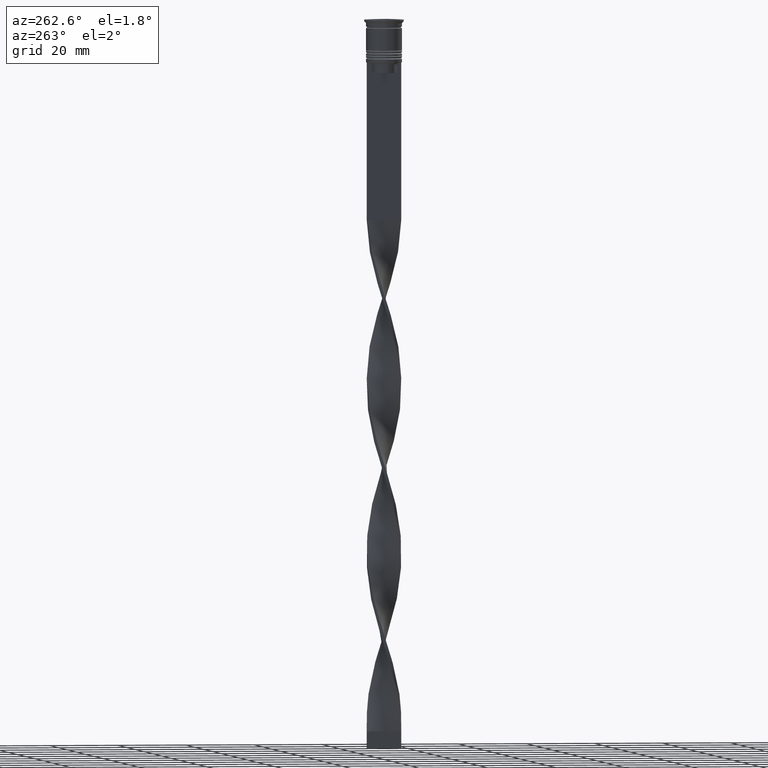
[diagram: clean part render]
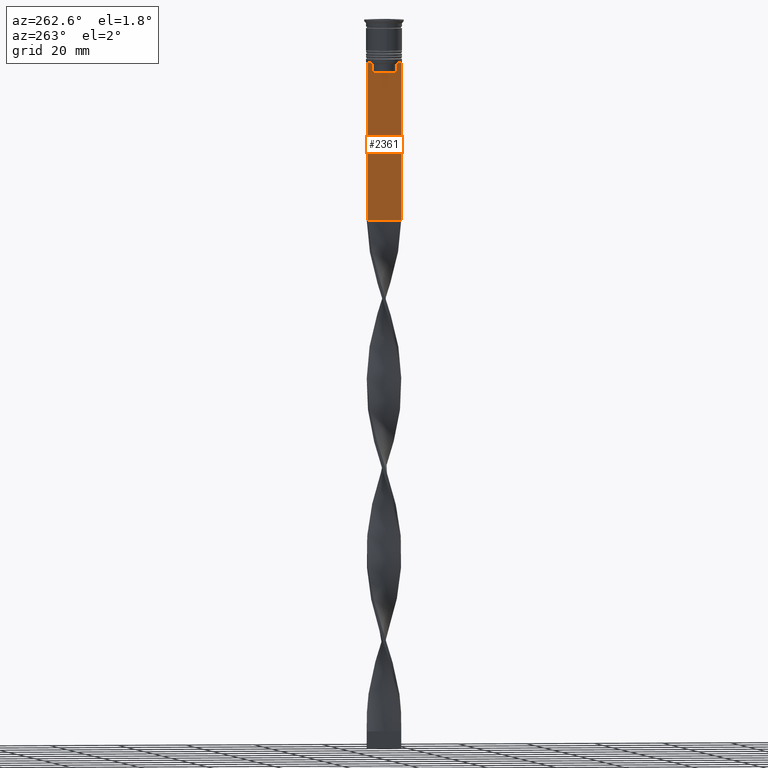
[diagram: same view with one face highlighted and labeled with its STEP entity id]
A machine part, auxiliary view. The second image highlights one B-rep face of the part: STEP entity #2361.
In plain terms, the highlighted planar face has unit normal (-1, 0, 0).
Its self-contained STEP definition (entity closure, byte-faithful):
#76 = CARTESIAN_POINT ( 'NONE',  ( -0.5000000000000000000, 3.615591237958188042, 0.000000000000000000 ) ) ;
#101 = EDGE_LOOP ( 'NONE', ( #2834, #3245, #3125, #246, #1710, #325, #3235, #759, #734, #2161 ) ) ;
#149 = VERTEX_POINT ( 'NONE', #1554 ) ;
#195 = DIRECTION ( 'NONE',  ( 0.000000000000000000, 0.000000000000000000, 1.000000000000000000 ) ) ;
#199 = VECTOR ( 'NONE', #519, 1000.000000000000000 ) ;
#201 = CARTESIAN_POINT ( 'NONE',  ( -0.5000000000000000000, -4.999999999999999112, -58.50000000000000000 ) ) ;
#234 = PLANE ( 'NONE',  #633 ) ;
#246 = ORIENTED_EDGE ( 'NONE', *, *, #585, .F. ) ;
#312 = VERTEX_POINT ( 'NONE', #3428 ) ;
#325 = ORIENTED_EDGE ( 'NONE', *, *, #2092, .F. ) ;
#519 = DIRECTION ( 'NONE',  ( 0.000000000000000000, 0.000000000000000000, -1.000000000000000000 ) ) ;
#567 = VECTOR ( 'NONE', #3702, 1000.000000000000000 ) ;
#585 = EDGE_CURVE ( 'NONE', #149, #3172, #723, .T. ) ;
#633 = AXIS2_PLACEMENT_3D ( 'NONE', #2891, #3678, #195 ) ;
#701 = LINE ( 'NONE', #1562, #1425 ) ;
#712 = VERTEX_POINT ( 'NONE', #2002 ) ;
#718 = CARTESIAN_POINT ( 'NONE',  ( -0.5000000000000000000, -4.999999999999999112, -12.50000000000000000 ) ) ;
#723 = LINE ( 'NONE', #201, #923 ) ;
#734 = ORIENTED_EDGE ( 'NONE', *, *, #1249, .F. ) ;
#759 = ORIENTED_EDGE ( 'NONE', *, *, #2306, .F. ) ;
#857 = DIRECTION ( 'NONE',  ( 0.000000000000000000, -1.000000000000000000, 0.000000000000000000 ) ) ;
#870 = CARTESIAN_POINT ( 'NONE',  ( -0.5000000000000000000, -3.951794168112525263, -12.66675163073526100 ) ) ;
#923 = VECTOR ( 'NONE', #1602, 1000.000000000000000 ) ;
#960 = B_SPLINE_CURVE_WITH_KNOTS ( 'NONE', 3,
 ( #2140, #962, #1532, #1850 ),
 .UNSPECIFIED., .F., .F.,
 ( 4, 4 ),
 ( 0.007067514914986629433, 0.007777582239375527111 ),
 .UNSPECIFIED. ) ;
#962 = CARTESIAN_POINT ( 'NONE',  ( -0.5000000000000000000, 3.951794205566887985, -12.66675159355373737 ) ) ;
#1037 = VERTEX_POINT ( 'NONE', #3330 ) ;
#1106 = CARTESIAN_POINT ( 'NONE',  ( -0.5000000000000000000, 5.000000000000000888, -58.50000000000000000 ) ) ;
#1154 = CARTESIAN_POINT ( 'NONE',  ( -0.5000000000000000000, -3.615591237958188042, -13.00000000000000178 ) ) ;
#1249 = EDGE_CURVE ( 'NONE', #3437, #712, #3680, .T. ) ;
#1258 = DIRECTION ( 'NONE',  ( -0.000000000000000000, -0.000000000000000000, 1.000000000000000000 ) ) ;
#1354 = EDGE_CURVE ( 'NONE', #2399, #2824, #3082, .T. ) ;
#1405 = CARTESIAN_POINT ( 'NONE',  ( -0.5000000000000000000, 3.650000000000003464, -15.50000000000000000 ) ) ;
#1425 = VECTOR ( 'NONE', #1258, 1000.000000000000000 ) ;
#1532 = CARTESIAN_POINT ( 'NONE',  ( -0.5000000000000000000, 3.783746449387932920, -12.83342999751715752 ) ) ;
#1554 = CARTESIAN_POINT ( 'NONE',  ( -0.5000000000000000000, -4.999999999999999112, -58.50000000000000000 ) ) ;
#1562 = CARTESIAN_POINT ( 'NONE',  ( -0.5000000000000000000, -3.615591237958188042, 0.000000000000000000 ) ) ;
#1602 = DIRECTION ( 'NONE',  ( 0.000000000000000000, 1.000000000000000000, 0.000000000000000000 ) ) ;
#1667 = LINE ( 'NONE', #2567, #199 ) ;
#1710 = ORIENTED_EDGE ( 'NONE', *, *, #1930, .F. ) ;
#1826 = DIRECTION ( 'NONE',  ( 0.000000000000000000, 0.000000000000000000, -1.000000000000000000 ) ) ;
#1834 = VERTEX_POINT ( 'NONE', #2268 ) ;
#1850 = CARTESIAN_POINT ( 'NONE',  ( -0.5000000000000000000, 3.615591237958188042, -13.00000000000000178 ) ) ;
#1863 = CARTESIAN_POINT ( 'NONE',  ( -0.5000000000000000000, -4.119769411022908834, -12.50000000000000000 ) ) ;
#1897 = DIRECTION ( 'NONE',  ( 0.000000000000000000, 0.000000000000000000, -1.000000000000000000 ) ) ;
#1930 = EDGE_CURVE ( 'NONE', #312, #149, #1667, .T. ) ;
#1978 = VECTOR ( 'NONE', #2144, 1000.000000000000000 ) ;
#2002 = CARTESIAN_POINT ( 'NONE',  ( -0.5000000000000000000, -3.615591237958188486, -15.50000000000000000 ) ) ;
#2092 = EDGE_CURVE ( 'NONE', #3265, #312, #2347, .T. ) ;
#2110 = B_SPLINE_CURVE_WITH_KNOTS ( 'NONE', 3,
 ( #1154, #3800, #870, #2450 ),
 .UNSPECIFIED., .F., .F.,
 ( 4, 4 ),
 ( 0.01745179617248910492, 0.01816207215777258452 ),
 .UNSPECIFIED. ) ;
#2140 = CARTESIAN_POINT ( 'NONE',  ( -0.5000000000000000000, 4.119769411022908834, -12.50000000000000000 ) ) ;
#2144 = DIRECTION ( 'NONE',  ( 0.000000000000000000, -1.000000000000000000, 0.000000000000000000 ) ) ;
#2161 = ORIENTED_EDGE ( 'NONE', *, *, #3351, .F. ) ;
#2169 = EDGE_CURVE ( 'NONE', #2399, #3172, #2771, .T. ) ;
#2268 = CARTESIAN_POINT ( 'NONE',  ( -0.5000000000000000000, 3.615591237958188042, -13.00000000000000178 ) ) ;
#2300 = CARTESIAN_POINT ( 'NONE',  ( -0.5000000000000000000, 3.615591237958188486, -15.50000000000000000 ) ) ;
#2306 = EDGE_CURVE ( 'NONE', #712, #1037, #701, .T. ) ;
#2347 = LINE ( 'NONE', #3524, #2919 ) ;
#2361 = ADVANCED_FACE ( 'NONE', ( #2848 ), #234, .T. ) ;
#2399 = VERTEX_POINT ( 'NONE', #3152 ) ;
#2450 = CARTESIAN_POINT ( 'NONE',  ( -0.5000000000000000000, -4.119769411022908834, -12.50000000000000000 ) ) ;
#2567 = CARTESIAN_POINT ( 'NONE',  ( -0.5000000000000000000, -4.999999999999999112, -2.450124378879110054 ) ) ;
#2663 = EDGE_CURVE ( 'NONE', #1037, #3265, #2110, .T. ) ;
#2706 = CARTESIAN_POINT ( 'NONE',  ( -0.5000000000000000000, 4.119769411022908834, -12.50000000000000000 ) ) ;
#2737 = LINE ( 'NONE', #76, #3358 ) ;
#2760 = EDGE_CURVE ( 'NONE', #2824, #1834, #960, .T. ) ;
#2771 = LINE ( 'NONE', #3369, #3643 ) ;
#2824 = VERTEX_POINT ( 'NONE', #2706 ) ;
#2834 = ORIENTED_EDGE ( 'NONE', *, *, #2760, .F. ) ;
#2848 = FACE_OUTER_BOUND ( 'NONE', #101, .T. ) ;
#2891 = CARTESIAN_POINT ( 'NONE',  ( -0.5000000000000000000, -4.999999999999999112, -2.450124378879110054 ) ) ;
#2919 = VECTOR ( 'NONE', #857, 1000.000000000000000 ) ;
#3082 = LINE ( 'NONE', #718, #1978 ) ;
#3125 = ORIENTED_EDGE ( 'NONE', *, *, #2169, .T. ) ;
#3152 = CARTESIAN_POINT ( 'NONE',  ( -0.5000000000000000000, 5.000000000000000888, -12.50000000000000000 ) ) ;
#3172 = VERTEX_POINT ( 'NONE', #1106 ) ;
#3235 = ORIENTED_EDGE ( 'NONE', *, *, #2663, .F. ) ;
#3245 = ORIENTED_EDGE ( 'NONE', *, *, #1354, .F. ) ;
#3265 = VERTEX_POINT ( 'NONE', #1863 ) ;
#3330 = CARTESIAN_POINT ( 'NONE',  ( -0.5000000000000000000, -3.615591237958188042, -13.00000000000000178 ) ) ;
#3351 = EDGE_CURVE ( 'NONE', #1834, #3437, #2737, .T. ) ;
#3358 = VECTOR ( 'NONE', #1826, 1000.000000000000000 ) ;
#3369 = CARTESIAN_POINT ( 'NONE',  ( -0.5000000000000000000, 5.000000000000000888, -2.450124378879110054 ) ) ;
#3428 = CARTESIAN_POINT ( 'NONE',  ( -0.5000000000000000000, -4.999999999999999112, -12.50000000000000000 ) ) ;
#3437 = VERTEX_POINT ( 'NONE', #2300 ) ;
#3524 = CARTESIAN_POINT ( 'NONE',  ( -0.5000000000000000000, -4.999999999999999112, -12.50000000000000000 ) ) ;
#3643 = VECTOR ( 'NONE', #1897, 1000.000000000000000 ) ;
#3678 = DIRECTION ( 'NONE',  ( -1.000000000000000000, 0.000000000000000000, 0.000000000000000000 ) ) ;
#3680 = LINE ( 'NONE', #1405, #567 ) ;
#3702 = DIRECTION ( 'NONE',  ( 0.000000000000000000, -1.000000000000000000, 0.000000000000000000 ) ) ;
#3800 = CARTESIAN_POINT ( 'NONE',  ( -0.5000000000000000000, -3.783746406711538945, -12.83343003979123687 ) ) ;